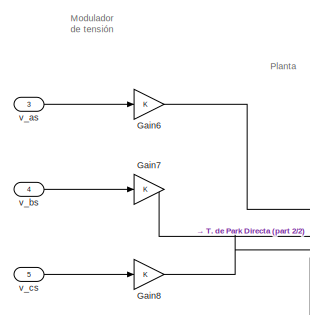
[diagram: root canvas - part 1/2, top left region]
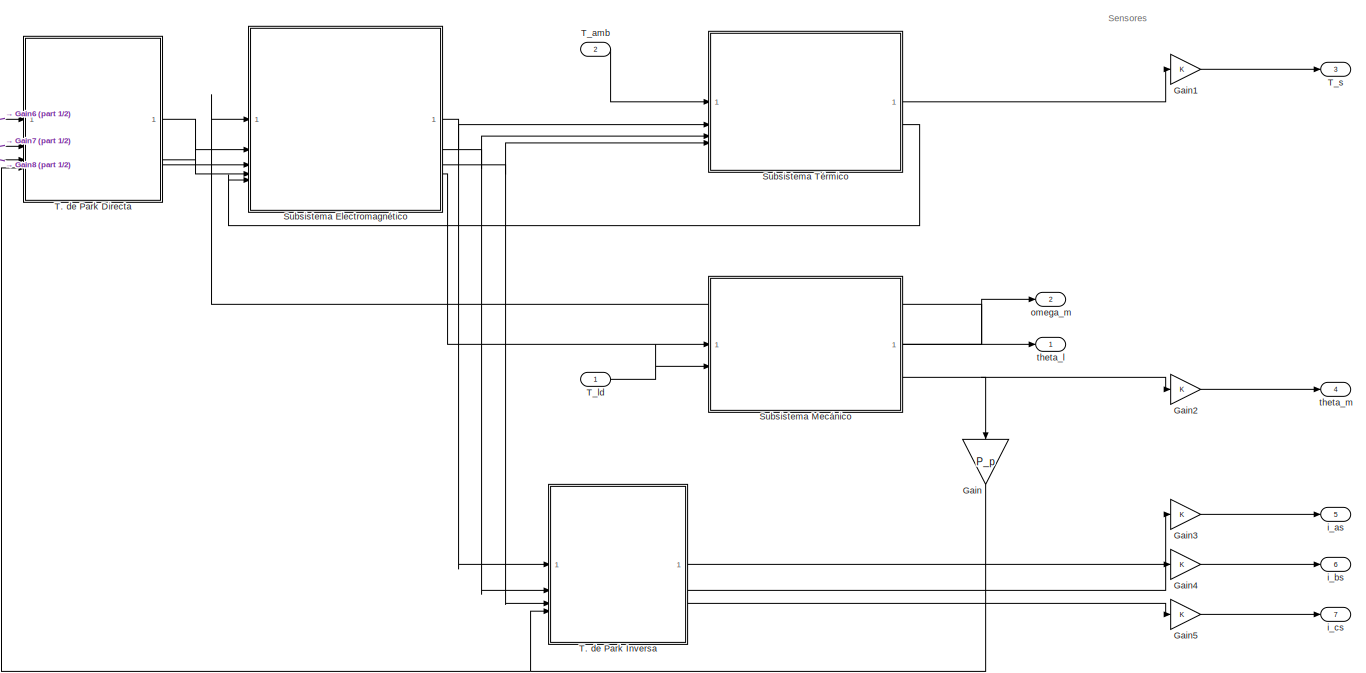
[diagram: root canvas - part 2/2, most of the canvas]
MODEL slx_22a7cf356125
KIND model
CONFIG AbsTol = auto
CONFIG EnableMultiTasking = off
CONFIG FixedStep = auto
CONFIG MaxStep = auto
CONFIG MinStep = auto
CONFIG RelTol = 1e-3
CONFIG SampleTimeConstraint = Unconstrained
CONFIG SolverName = VariableStepAuto
CONFIG StartTime = 0.0
CONFIG StopTime = 10.0
BLOCK [Gain] Gain
  Gain = P_p
  NameLocation = left
BLOCK [Gain] Gain1
BLOCK [Gain] Gain2
BLOCK [Gain] Gain3
BLOCK [Gain] Gain4
BLOCK [Gain] Gain5
BLOCK [Gain] Gain6
BLOCK [Gain] Gain7
BLOCK [Gain] Gain8
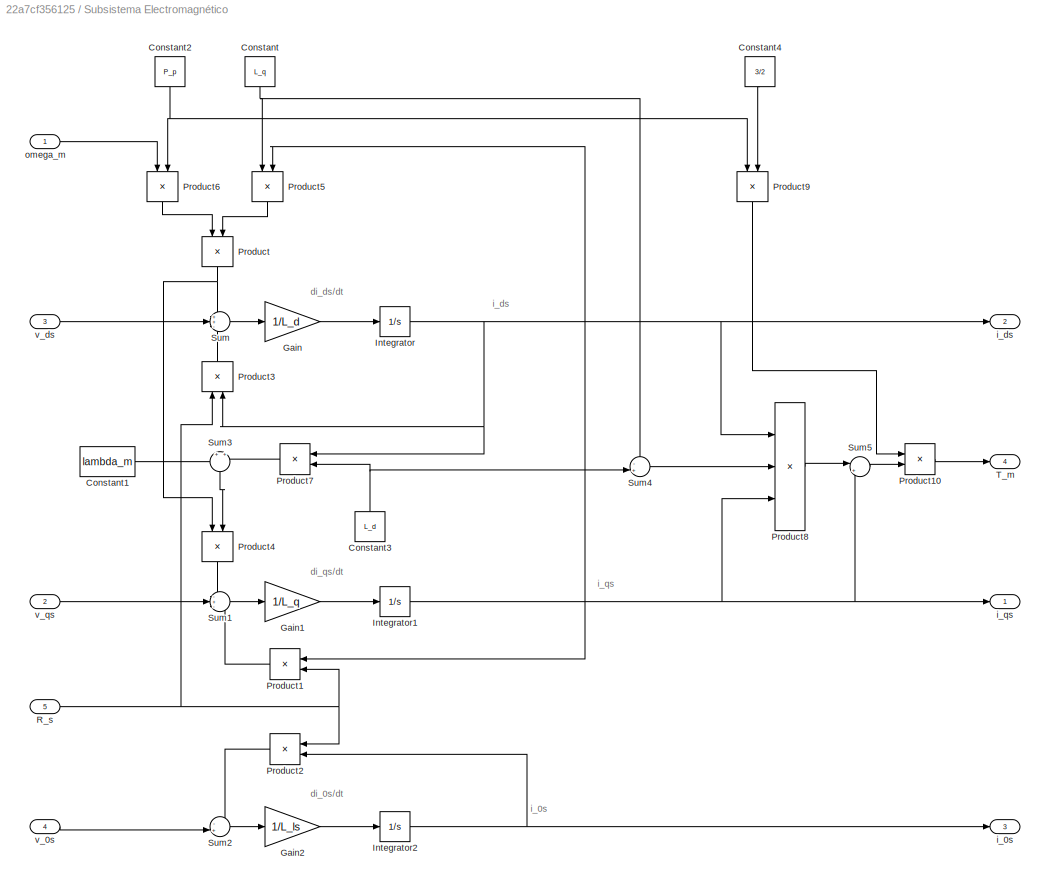
BLOCK [SubSystem] Subsistema Electromagnético
  NameLocation = top
BLOCK [Constant] Subsistema Electromagnético/Constant
  NameLocation = left
  Value = L_q
BLOCK [Constant] Subsistema Electromagnético/Constant1
  Value = lambda_m
BLOCK [Constant] Subsistema Electromagnético/Constant2
  NameLocation = left
  Value = P_p
BLOCK [Constant] Subsistema Electromagnético/Constant3
  NameLocation = right
  Value = L_d
BLOCK [Constant] Subsistema Electromagnético/Constant4
  NameLocation = left
  Value = 3/2
BLOCK [Gain] Subsistema Electromagnético/Gain
  Gain = 1/L_d
BLOCK [Gain] Subsistema Electromagnético/Gain1
  Gain = 1/L_q
BLOCK [Gain] Subsistema Electromagnético/Gain2
  Gain = 1/L_ls
BLOCK [Integrator] Subsistema Electromagnético/Integrator
BLOCK [Integrator] Subsistema Electromagnético/Integrator1
BLOCK [Integrator] Subsistema Electromagnético/Integrator2
BLOCK [Product] Subsistema Electromagnético/Product
  NameLocation = left
BLOCK [Product] Subsistema Electromagnético/Product1
BLOCK [Product] Subsistema Electromagnético/Product10
BLOCK [Product] Subsistema Electromagnético/Product2
BLOCK [Product] Subsistema Electromagnético/Product3
  NameLocation = left
BLOCK [Product] Subsistema Electromagnético/Product4
  NameLocation = left
BLOCK [Product] Subsistema Electromagnético/Product5
  NameLocation = left
BLOCK [Product] Subsistema Electromagnético/Product6
  NameLocation = left
BLOCK [Product] Subsistema Electromagnético/Product7
BLOCK [Product] Subsistema Electromagnético/Product8
  Inputs = 3
BLOCK [Product] Subsistema Electromagnético/Product9
  NameLocation = left
BLOCK [Inport] Subsistema Electromagnético/R_s
  Port = 5
BLOCK [Sum] Subsistema Electromagnético/Sum
  Inputs = ++-
BLOCK [Sum] Subsistema Electromagnético/Sum1
  Inputs = -+-
BLOCK [Sum] Subsistema Electromagnético/Sum2
  Inputs = -+|
BLOCK [Sum] Subsistema Electromagnético/Sum3
  Inputs = +|+
  NameLocation = left
BLOCK [Sum] Subsistema Electromagnético/Sum4
  Inputs = -+|
BLOCK [Sum] Subsistema Electromagnético/Sum5
  Inputs = |++
BLOCK [Outport] Subsistema Electromagnético/T_m
  Port = 4
BLOCK [Outport] Subsistema Electromagnético/i_0s
  Port = 3
BLOCK [Outport] Subsistema Electromagnético/i_ds
  Port = 2
BLOCK [Outport] Subsistema Electromagnético/i_qs
BLOCK [Inport] Subsistema Electromagnético/omega_m
BLOCK [Inport] Subsistema Electromagnético/v_0s
  Port = 4
BLOCK [Inport] Subsistema Electromagnético/v_ds
  Port = 3
BLOCK [Inport] Subsistema Electromagnético/v_qs
  Port = 2
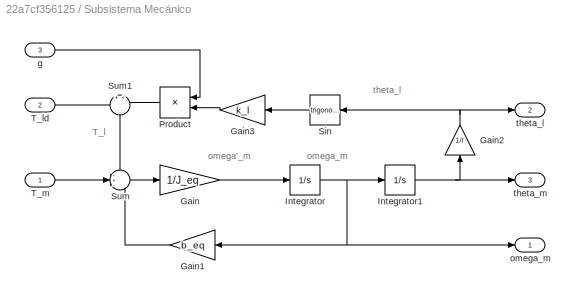
BLOCK [SubSystem] Subsistema Mecánico
BLOCK [Gain] Subsistema Mecánico/Gain
  Gain = 1/J_eq
BLOCK [Gain] Subsistema Mecánico/Gain1
  Gain = b_eq
BLOCK [Gain] Subsistema Mecánico/Gain2
  Gain = 1/r
  NameLocation = right
BLOCK [Gain] Subsistema Mecánico/Gain3
  Gain = k_l
BLOCK [Integrator] Subsistema Mecánico/Integrator
BLOCK [Integrator] Subsistema Mecánico/Integrator1
BLOCK [Product] Subsistema Mecánico/Product
BLOCK [Trigonometry] Subsistema Mecánico/Sin
BLOCK [Sum] Subsistema Mecánico/Sum
  Inputs = -+-
BLOCK [Sum] Subsistema Mecánico/Sum1
  NameLocation = left
BLOCK [Inport] Subsistema Mecánico/T_ld
  Port = 2
BLOCK [Inport] Subsistema Mecánico/T_m
BLOCK [Inport] Subsistema Mecánico/g
  Port = 3
BLOCK [Outport] Subsistema Mecánico/omega_m
BLOCK [Outport] Subsistema Mecánico/theta_l
  Port = 2
BLOCK [Outport] Subsistema Mecánico/theta_m
  Port = 3
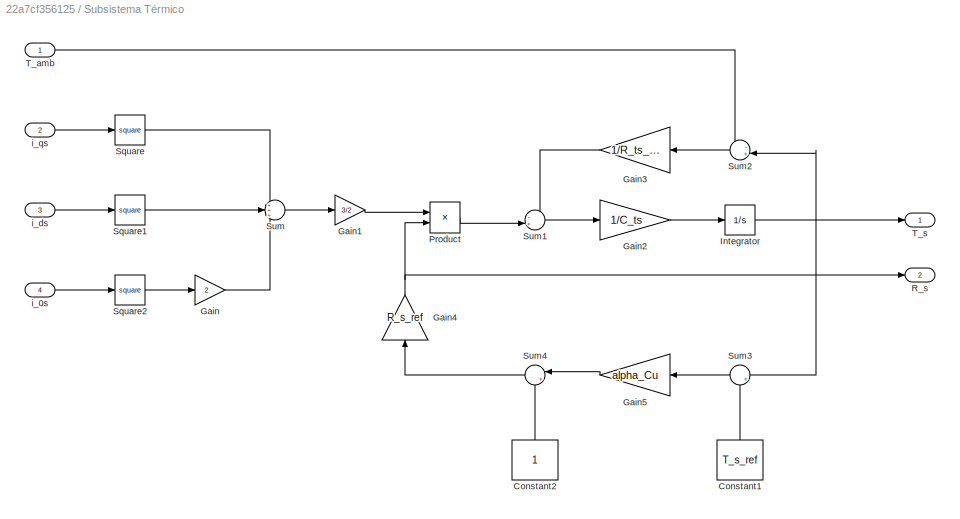
BLOCK [SubSystem] Subsistema Térmico
  NameLocation = top
BLOCK [Constant] Subsistema Térmico/Constant1
  NameLocation = right
  Value = T_s_ref
BLOCK [Constant] Subsistema Térmico/Constant2
  NameLocation = right
BLOCK [Gain] Subsistema Térmico/Gain
  Gain = 2
BLOCK [Gain] Subsistema Térmico/Gain1
  Gain = 3/2
BLOCK [Gain] Subsistema Térmico/Gain2
  Gain = 1/C_ts
BLOCK [Gain] Subsistema Térmico/Gain3
  Gain = 1/R_ts_amb
BLOCK [Gain] Subsistema Térmico/Gain4
  Gain = R_s_ref
  NameLocation = right
BLOCK [Gain] Subsistema Térmico/Gain5
  Gain = alpha_Cu
BLOCK [Integrator] Subsistema Térmico/Integrator
BLOCK [Product] Subsistema Térmico/Product
BLOCK [Outport] Subsistema Térmico/R_s
  Port = 2
BLOCK [Math] Subsistema Térmico/Square
  Operator = square
BLOCK [Math] Subsistema Térmico/Square1
  Operator = square
BLOCK [Math] Subsistema Térmico/Square2
  Operator = square
BLOCK [Sum] Subsistema Térmico/Sum
  Inputs = +++
BLOCK [Sum] Subsistema Térmico/Sum1
  Inputs = -+|
BLOCK [Sum] Subsistema Térmico/Sum2
  Inputs = -+|
BLOCK [Sum] Subsistema Térmico/Sum3
  Inputs = |+-
BLOCK [Sum] Subsistema Térmico/Sum4
  Inputs = |++
BLOCK [Inport] Subsistema Térmico/T_amb
BLOCK [Outport] Subsistema Térmico/T_s
BLOCK [Inport] Subsistema Térmico/i_0s
  Port = 4
BLOCK [Inport] Subsistema Térmico/i_ds
  Port = 3
BLOCK [Inport] Subsistema Térmico/i_qs
  Port = 2
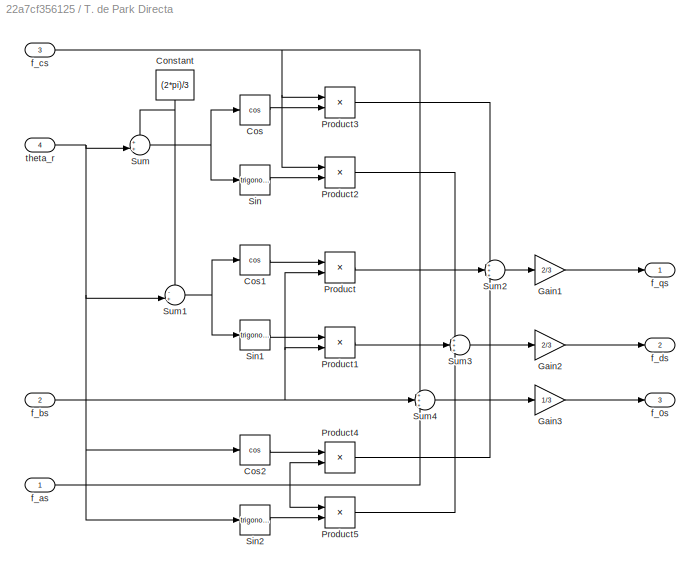
BLOCK [SubSystem] T. de Park Directa
  NameLocation = top
BLOCK [Constant] T. de Park Directa/Constant
  NameLocation = left
  Value = (2*pi)/3
BLOCK [Trigonometry] T. de Park Directa/Cos
  Operator = cos
BLOCK [Trigonometry] T. de Park Directa/Cos1
  Operator = cos
BLOCK [Trigonometry] T. de Park Directa/Cos2
  Operator = cos
BLOCK [Gain] T. de Park Directa/Gain1
  Gain = 2/3
BLOCK [Gain] T. de Park Directa/Gain2
  Gain = 2/3
BLOCK [Gain] T. de Park Directa/Gain3
  Gain = 1/3
BLOCK [Product] T. de Park Directa/Product
BLOCK [Product] T. de Park Directa/Product1
BLOCK [Product] T. de Park Directa/Product2
BLOCK [Product] T. de Park Directa/Product3
BLOCK [Product] T. de Park Directa/Product4
BLOCK [Product] T. de Park Directa/Product5
BLOCK [Trigonometry] T. de Park Directa/Sin
BLOCK [Trigonometry] T. de Park Directa/Sin1
BLOCK [Trigonometry] T. de Park Directa/Sin2
BLOCK [Sum] T. de Park Directa/Sum
  Inputs = ++|
BLOCK [Sum] T. de Park Directa/Sum1
  Inputs = -+|
BLOCK [Sum] T. de Park Directa/Sum2
  Inputs = +++
BLOCK [Sum] T. de Park Directa/Sum3
  Inputs = +++
BLOCK [Sum] T. de Park Directa/Sum4
  Inputs = +++
BLOCK [Outport] T. de Park Directa/f_0s
  Port = 3
BLOCK [Inport] T. de Park Directa/f_as
BLOCK [Inport] T. de Park Directa/f_bs
  Port = 2
BLOCK [Inport] T. de Park Directa/f_cs
  Port = 3
BLOCK [Outport] T. de Park Directa/f_ds
  Port = 2
BLOCK [Outport] T. de Park Directa/f_qs
BLOCK [Inport] T. de Park Directa/theta_r
  Port = 4
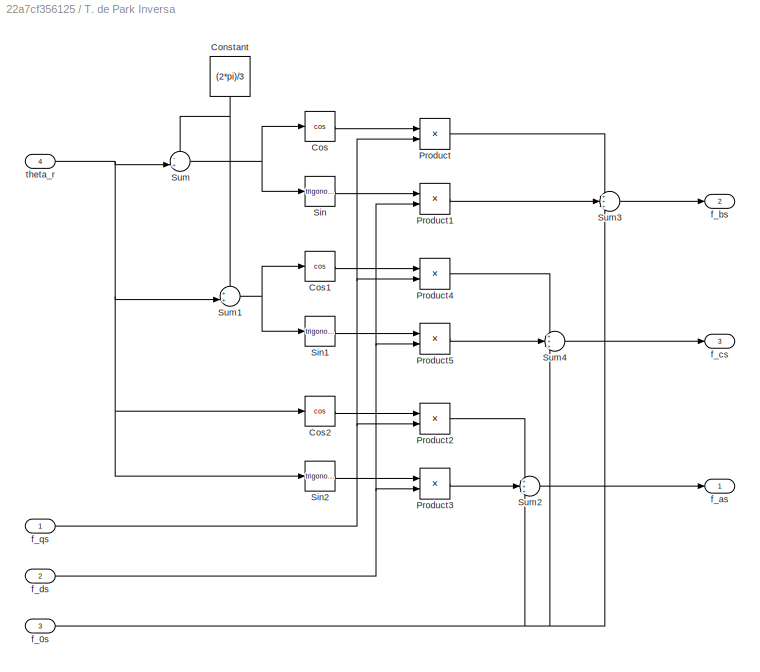
BLOCK [SubSystem] T. de Park Inversa
  NameLocation = top
BLOCK [Constant] T. de Park Inversa/Constant
  NameLocation = left
  Value = (2*pi)/3
BLOCK [Trigonometry] T. de Park Inversa/Cos
  Operator = cos
BLOCK [Trigonometry] T. de Park Inversa/Cos1
  Operator = cos
BLOCK [Trigonometry] T. de Park Inversa/Cos2
  Operator = cos
BLOCK [Product] T. de Park Inversa/Product
BLOCK [Product] T. de Park Inversa/Product1
BLOCK [Product] T. de Park Inversa/Product2
BLOCK [Product] T. de Park Inversa/Product3
BLOCK [Product] T. de Park Inversa/Product4
BLOCK [Product] T. de Park Inversa/Product5
BLOCK [Trigonometry] T. de Park Inversa/Sin
BLOCK [Trigonometry] T. de Park Inversa/Sin1
BLOCK [Trigonometry] T. de Park Inversa/Sin2
BLOCK [Sum] T. de Park Inversa/Sum
  Inputs = -+|
BLOCK [Sum] T. de Park Inversa/Sum1
  Inputs = ++|
BLOCK [Sum] T. de Park Inversa/Sum2
  Inputs = +++
BLOCK [Sum] T. de Park Inversa/Sum3
  Inputs = +++
BLOCK [Sum] T. de Park Inversa/Sum4
  Inputs = +++
BLOCK [Inport] T. de Park Inversa/f_0s
  Port = 3
BLOCK [Outport] T. de Park Inversa/f_as
BLOCK [Outport] T. de Park Inversa/f_bs
  Port = 2
BLOCK [Outport] T. de Park Inversa/f_cs
  Port = 3
BLOCK [Inport] T. de Park Inversa/f_ds
  Port = 2
BLOCK [Inport] T. de Park Inversa/f_qs
BLOCK [Inport] T. de Park Inversa/theta_r
  Port = 4
BLOCK [Inport] T_amb
  Port = 2
BLOCK [Inport] T_ld
BLOCK [Outport] T_s
  Port = 3
BLOCK [Outport] i_as
  Port = 5
BLOCK [Outport] i_bs
  Port = 6
BLOCK [Outport] i_cs
  Port = 7
BLOCK [Outport] omega_m 
  Port = 2
BLOCK [Outport] theta_l
BLOCK [Outport] theta_m
  Port = 4
BLOCK [Inport] v_as
  Port = 3
BLOCK [Inport] v_bs
  Port = 4
BLOCK [Inport] v_cs
  Port = 5
ANNOTATION (root): Modulador de tensión
ANNOTATION (root): Planta
ANNOTATION (root): Sensores
ANNOTATION Subsistema Electromagnético: di_0s/dt
ANNOTATION Subsistema Electromagnético: di_ds/dt
ANNOTATION Subsistema Electromagnético: di_qs/dt
ANNOTATION Subsistema Electromagnético: i_0s
ANNOTATION Subsistema Electromagnético: i_ds
ANNOTATION Subsistema Electromagnético: i_qs
ANNOTATION Subsistema Mecánico: T_l
ANNOTATION Subsistema Mecánico: omega'_m
ANNOTATION Subsistema Mecánico: omega_m
ANNOTATION Subsistema Mecánico: theta_l
LINE Gain1:1 -> T_s:1
LINE Gain2:1 -> theta_m:1
LINE Gain3:1 -> i_as:1
LINE Gain4:1 -> i_bs:1
LINE Gain5:1 -> i_cs:1
LINE Gain6:1 -> T. de Park Directa:1
LINE Gain7:1 -> T. de Park Directa:2
LINE Gain8:1 -> T. de Park Directa:3
NET Gain:1 -> T. de Park Directa:4, T. de Park Inversa:4
LINE Subsistema Electromagnético/Constant1:1 -> Subsistema Electromagnético/Sum3:1
NET Subsistema Electromagnético/Constant2:1 -> Subsistema Electromagnético/Product6:2, Subsistema Electromagnético/Product9:1
NET Subsistema Electromagnético/Constant3:1 -> Subsistema Electromagnético/Product7:2, Subsistema Electromagnético/Sum4:2
LINE Subsistema Electromagnético/Constant4:1 -> Subsistema Electromagnético/Product9:2
NET Subsistema Electromagnético/Constant:1 -> Subsistema Electromagnético/Product5:1, Subsistema Electromagnético/Sum4:1
LINE Subsistema Electromagnético/Gain1:1 -> Subsistema Electromagnético/Integrator1:1
LINE Subsistema Electromagnético/Gain2:1 -> Subsistema Electromagnético/Integrator2:1
LINE Subsistema Electromagnético/Gain:1 -> Subsistema Electromagnético/Integrator:1
NET Subsistema Electromagnético/Integrator1:1 -> Subsistema Electromagnético/Product1:1, Subsistema Electromagnético/Product5:2, Subsistema Electromagnético/Product8:3, Subsistema Electromagnético/Sum5:2, Subsistema Electromagnético/i_qs:1
NET Subsistema Electromagnético/Integrator2:1 -> Subsistema Electromagnético/Product2:2, Subsistema Electromagnético/i_0s:1
NET Subsistema Electromagnético/Integrator:1 -> Subsistema Electromagnético/Product3:2, Subsistema Electromagnético/Product7:1, Subsistema Electromagnético/Product8:1, Subsistema Electromagnético/i_ds:1
LINE Subsistema Electromagnético/Product10:1 -> Subsistema Electromagnético/T_m:1
LINE Subsistema Electromagnético/Product1:1 -> Subsistema Electromagnético/Sum1:3
LINE Subsistema Electromagnético/Product2:1 -> Subsistema Electromagnético/Sum2:1
LINE Subsistema Electromagnético/Product3:1 -> Subsistema Electromagnético/Sum:3
LINE Subsistema Electromagnético/Product4:1 -> Subsistema Electromagnético/Sum1:1
LINE Subsistema Electromagnético/Product5:1 -> Subsistema Electromagnético/Product:2
LINE Subsistema Electromagnético/Product6:1 -> Subsistema Electromagnético/Product:1
LINE Subsistema Electromagnético/Product7:1 -> Subsistema Electromagnético/Sum3:2
LINE Subsistema Electromagnético/Product8:1 -> Subsistema Electromagnético/Sum5:1
LINE Subsistema Electromagnético/Product9:1 -> Subsistema Electromagnético/Product10:1
NET Subsistema Electromagnético/Product:1 -> Subsistema Electromagnético/Product4:1, Subsistema Electromagnético/Sum:1
NET Subsistema Electromagnético/R_s:1 -> Subsistema Electromagnético/Product1:2, Subsistema Electromagnético/Product2:1, Subsistema Electromagnético/Product3:1
LINE Subsistema Electromagnético/Sum1:1 -> Subsistema Electromagnético/Gain1:1
LINE Subsistema Electromagnético/Sum2:1 -> Subsistema Electromagnético/Gain2:1
LINE Subsistema Electromagnético/Sum3:1 -> Subsistema Electromagnético/Product4:2
LINE Subsistema Electromagnético/Sum4:1 -> Subsistema Electromagnético/Product8:2
LINE Subsistema Electromagnético/Sum5:1 -> Subsistema Electromagnético/Product10:2
LINE Subsistema Electromagnético/Sum:1 -> Subsistema Electromagnético/Gain:1
LINE Subsistema Electromagnético/omega_m:1 -> Subsistema Electromagnético/Product6:1
LINE Subsistema Electromagnético/v_0s:1 -> Subsistema Electromagnético/Sum2:2
LINE Subsistema Electromagnético/v_ds:1 -> Subsistema Electromagnético/Sum:2
LINE Subsistema Electromagnético/v_qs:1 -> Subsistema Electromagnético/Sum1:2
NET Subsistema Electromagnético:1 -> Subsistema Térmico:2, T. de Park Inversa:1
NET Subsistema Electromagnético:2 -> Subsistema Térmico:3, T. de Park Inversa:2
NET Subsistema Electromagnético:3 -> Subsistema Térmico:4, T. de Park Inversa:3
LINE Subsistema Electromagnético:4 -> Subsistema Mecánico:1
LINE Subsistema Mecánico/Gain1:1 -> Subsistema Mecánico/Sum:3
NET Subsistema Mecánico/Gain2:1 -> Subsistema Mecánico/Sin:1, Subsistema Mecánico/theta_l:1
LINE Subsistema Mecánico/Gain3:1 -> Subsistema Mecánico/Product:2
LINE Subsistema Mecánico/Gain:1 -> Subsistema Mecánico/Integrator:1
NET Subsistema Mecánico/Integrator1:1 -> Subsistema Mecánico/Gain2:1, Subsistema Mecánico/theta_m:1
NET Subsistema Mecánico/Integrator:1 -> Subsistema Mecánico/Gain1:1, Subsistema Mecánico/Integrator1:1, Subsistema Mecánico/omega_m:1
LINE Subsistema Mecánico/Product:1 -> Subsistema Mecánico/Sum1:2
LINE Subsistema Mecánico/Sin:1 -> Subsistema Mecánico/Gain3:1
LINE Subsistema Mecánico/Sum1:1 -> Subsistema Mecánico/Sum:1
LINE Subsistema Mecánico/Sum:1 -> Subsistema Mecánico/Gain:1
LINE Subsistema Mecánico/T_ld:1 -> Subsistema Mecánico/Sum1:1
LINE Subsistema Mecánico/T_m:1 -> Subsistema Mecánico/Sum:2
LINE Subsistema Mecánico/g:1 -> Subsistema Mecánico/Product:1
NET Subsistema Mecánico:1 -> Subsistema Electromagnético:1, omega_m :1
LINE Subsistema Mecánico:2 -> theta_l:1
NET Subsistema Mecánico:3 -> Gain2:1, Gain:1
LINE Subsistema Térmico/Constant1:1 -> Subsistema Térmico/Sum3:2
LINE Subsistema Térmico/Constant2:1 -> Subsistema Térmico/Sum4:2
LINE Subsistema Térmico/Gain1:1 -> Subsistema Térmico/Product:1
LINE Subsistema Térmico/Gain2:1 -> Subsistema Térmico/Integrator:1
LINE Subsistema Térmico/Gain3:1 -> Subsistema Térmico/Sum1:1
NET Subsistema Térmico/Gain4:1 -> Subsistema Térmico/Product:2, Subsistema Térmico/R_s:1
LINE Subsistema Térmico/Gain5:1 -> Subsistema Térmico/Sum4:1
LINE Subsistema Térmico/Gain:1 -> Subsistema Térmico/Sum:3
NET Subsistema Térmico/Integrator:1 -> Subsistema Térmico/Sum2:2, Subsistema Térmico/Sum3:1, Subsistema Térmico/T_s:1
LINE Subsistema Térmico/Product:1 -> Subsistema Térmico/Sum1:2
LINE Subsistema Térmico/Square1:1 -> Subsistema Térmico/Sum:2
LINE Subsistema Térmico/Square2:1 -> Subsistema Térmico/Gain:1
LINE Subsistema Térmico/Square:1 -> Subsistema Térmico/Sum:1
LINE Subsistema Térmico/Sum1:1 -> Subsistema Térmico/Gain2:1
LINE Subsistema Térmico/Sum2:1 -> Subsistema Térmico/Gain3:1
LINE Subsistema Térmico/Sum3:1 -> Subsistema Térmico/Gain5:1
LINE Subsistema Térmico/Sum4:1 -> Subsistema Térmico/Gain4:1
LINE Subsistema Térmico/Sum:1 -> Subsistema Térmico/Gain1:1
LINE Subsistema Térmico/T_amb:1 -> Subsistema Térmico/Sum2:1
LINE Subsistema Térmico/i_0s:1 -> Subsistema Térmico/Square2:1
LINE Subsistema Térmico/i_ds:1 -> Subsistema Térmico/Square1:1
LINE Subsistema Térmico/i_qs:1 -> Subsistema Térmico/Square:1
LINE Subsistema Térmico:1 -> Gain1:1
LINE Subsistema Térmico:2 -> Subsistema Electromagnético:5
NET T. de Park Directa/Constant:1 -> T. de Park Directa/Sum1:1, T. de Park Directa/Sum:1
LINE T. de Park Directa/Cos1:1 -> T. de Park Directa/Product:1
LINE T. de Park Directa/Cos2:1 -> T. de Park Directa/Product4:1
LINE T. de Park Directa/Cos:1 -> T. de Park Directa/Product3:2
LINE T. de Park Directa/Gain1:1 -> T. de Park Directa/f_qs:1
LINE T. de Park Directa/Gain2:1 -> T. de Park Directa/f_ds:1
LINE T. de Park Directa/Gain3:1 -> T. de Park Directa/f_0s:1
LINE T. de Park Directa/Product1:1 -> T. de Park Directa/Sum3:2
LINE T. de Park Directa/Product2:1 -> T. de Park Directa/Sum3:1
LINE T. de Park Directa/Product3:1 -> T. de Park Directa/Sum2:1
LINE T. de Park Directa/Product4:1 -> T. de Park Directa/Sum2:3
LINE T. de Park Directa/Product5:1 -> T. de Park Directa/Sum3:3
LINE T. de Park Directa/Product:1 -> T. de Park Directa/Sum2:2
LINE T. de Park Directa/Sin1:1 -> T. de Park Directa/Product1:1
LINE T. de Park Directa/Sin2:1 -> T. de Park Directa/Product5:2
LINE T. de Park Directa/Sin:1 -> T. de Park Directa/Product2:2
NET T. de Park Directa/Sum1:1 -> T. de Park Directa/Cos1:1, T. de Park Directa/Sin1:1
LINE T. de Park Directa/Sum2:1 -> T. de Park Directa/Gain1:1
LINE T. de Park Directa/Sum3:1 -> T. de Park Directa/Gain2:1
LINE T. de Park Directa/Sum4:1 -> T. de Park Directa/Gain3:1
NET T. de Park Directa/Sum:1 -> T. de Park Directa/Cos:1, T. de Park Directa/Sin:1
NET T. de Park Directa/f_as:1 -> T. de Park Directa/Product4:2, T. de Park Directa/Product5:1, T. de Park Directa/Sum4:3
NET T. de Park Directa/f_bs:1 -> T. de Park Directa/Product1:2, T. de Park Directa/Product:2, T. de Park Directa/Sum4:2
NET T. de Park Directa/f_cs:1 -> T. de Park Directa/Product2:1, T. de Park Directa/Product3:1, T. de Park Directa/Sum4:1
NET T. de Park Directa/theta_r:1 -> T. de Park Directa/Cos2:1, T. de Park Directa/Sin2:1, T. de Park Directa/Sum1:2, T. de Park Directa/Sum:2
LINE T. de Park Directa:1 -> Subsistema Electromagnético:2
LINE T. de Park Directa:2 -> Subsistema Electromagnético:3
LINE T. de Park Directa:3 -> Subsistema Electromagnético:4
NET T. de Park Inversa/Constant:1 -> T. de Park Inversa/Sum1:1, T. de Park Inversa/Sum:1
LINE T. de Park Inversa/Cos1:1 -> T. de Park Inversa/Product4:1
LINE T. de Park Inversa/Cos2:1 -> T. de Park Inversa/Product2:1
LINE T. de Park Inversa/Cos:1 -> T. de Park Inversa/Product:1
LINE T. de Park Inversa/Product1:1 -> T. de Park Inversa/Sum3:2
LINE T. de Park Inversa/Product2:1 -> T. de Park Inversa/Sum2:1
LINE T. de Park Inversa/Product3:1 -> T. de Park Inversa/Sum2:2
LINE T. de Park Inversa/Product4:1 -> T. de Park Inversa/Sum4:1
LINE T. de Park Inversa/Product5:1 -> T. de Park Inversa/Sum4:2
LINE T. de Park Inversa/Product:1 -> T. de Park Inversa/Sum3:1
LINE T. de Park Inversa/Sin1:1 -> T. de Park Inversa/Product5:1
LINE T. de Park Inversa/Sin2:1 -> T. de Park Inversa/Product3:1
LINE T. de Park Inversa/Sin:1 -> T. de Park Inversa/Product1:1
NET T. de Park Inversa/Sum1:1 -> T. de Park Inversa/Cos1:1, T. de Park Inversa/Sin1:1
LINE T. de Park Inversa/Sum2:1 -> T. de Park Inversa/f_as:1
LINE T. de Park Inversa/Sum3:1 -> T. de Park Inversa/f_bs:1
LINE T. de Park Inversa/Sum4:1 -> T. de Park Inversa/f_cs:1
NET T. de Park Inversa/Sum:1 -> T. de Park Inversa/Cos:1, T. de Park Inversa/Sin:1
NET T. de Park Inversa/f_0s:1 -> T. de Park Inversa/Sum2:3, T. de Park Inversa/Sum3:3, T. de Park Inversa/Sum4:3
NET T. de Park Inversa/f_ds:1 -> T. de Park Inversa/Product1:2, T. de Park Inversa/Product3:2, T. de Park Inversa/Product5:2
NET T. de Park Inversa/f_qs:1 -> T. de Park Inversa/Product2:2, T. de Park Inversa/Product4:2, T. de Park Inversa/Product:2
NET T. de Park Inversa/theta_r:1 -> T. de Park Inversa/Cos2:1, T. de Park Inversa/Sin2:1, T. de Park Inversa/Sum1:2, T. de Park Inversa/Sum:2
LINE T. de Park Inversa:1 -> Gain3:1
LINE T. de Park Inversa:2 -> Gain4:1
LINE T. de Park Inversa:3 -> Gain5:1
LINE T_amb:1 -> Subsistema Térmico:1
LINE T_ld:1 -> Subsistema Mecánico:2
LINE v_as:1 -> Gain6:1
LINE v_bs:1 -> Gain7:1
LINE v_cs:1 -> Gain8:1
note: NET lines group one-source signal fan-out (src -> all destinations, sorted); 1:1 wires keep LINE
